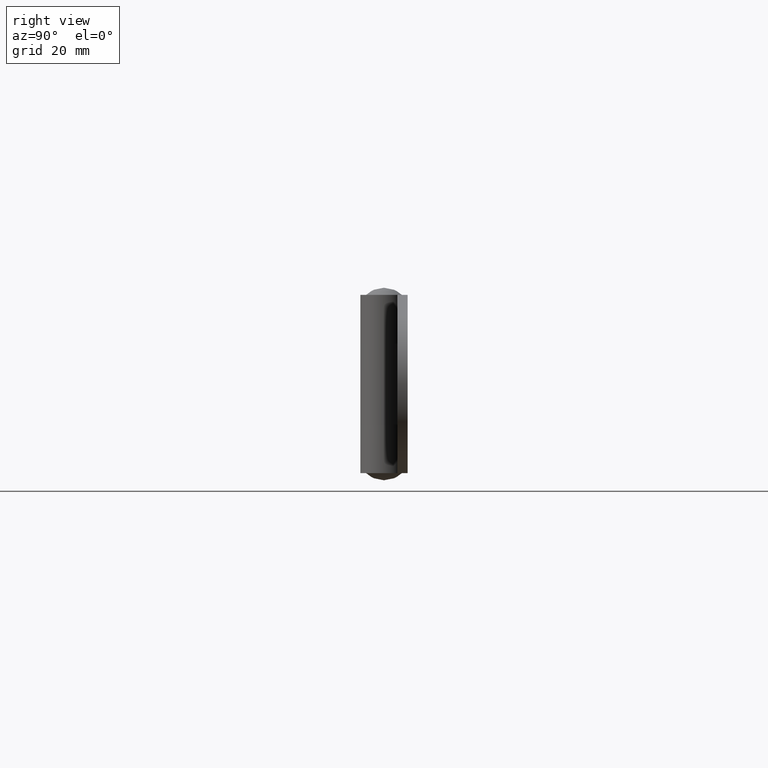
[diagram: clean part render]
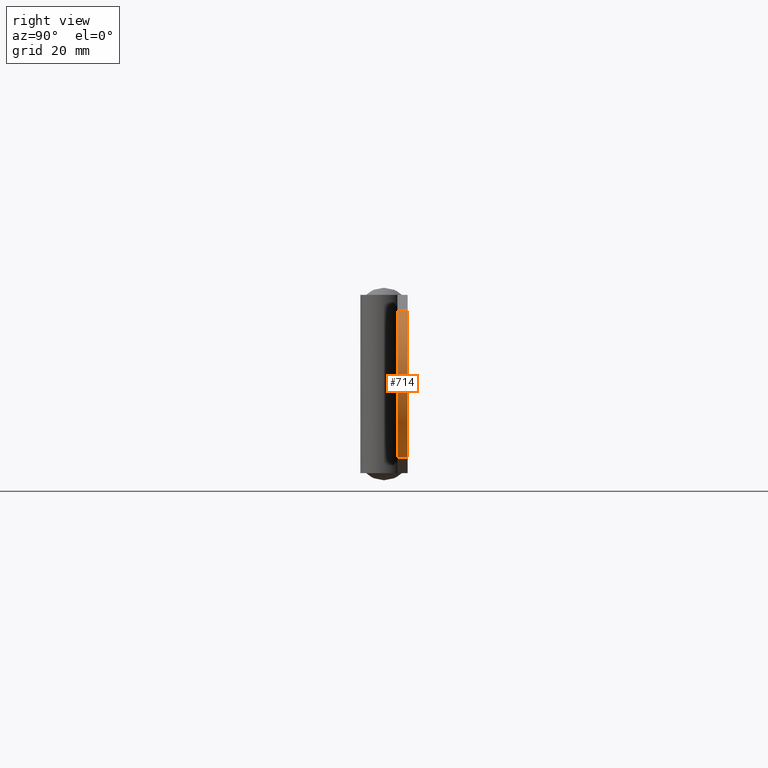
[diagram: same view with one face highlighted and labeled with its STEP entity id]
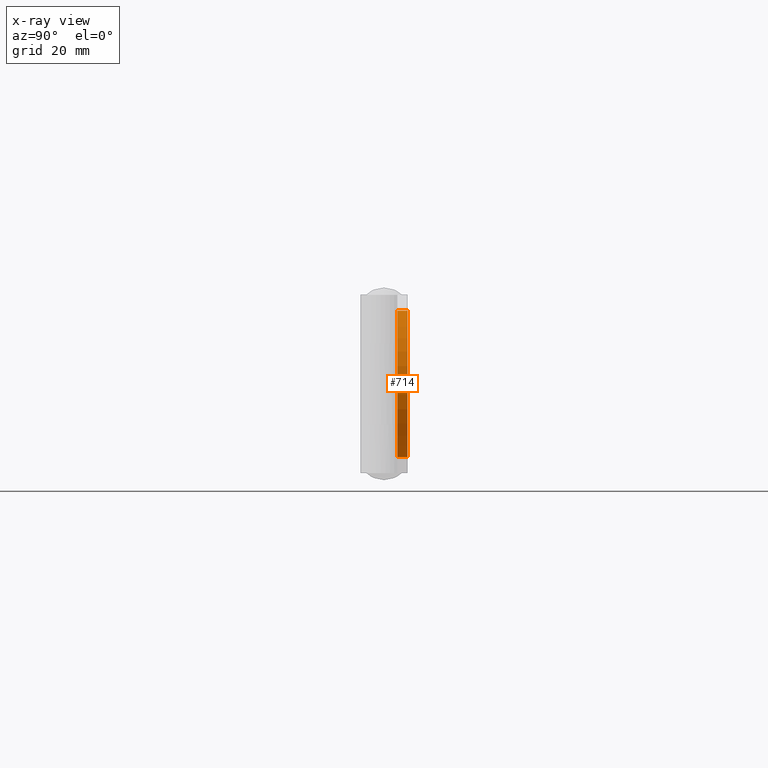
[diagram: x-ray of the same camera — body ghosted, the highlighted face saturated]
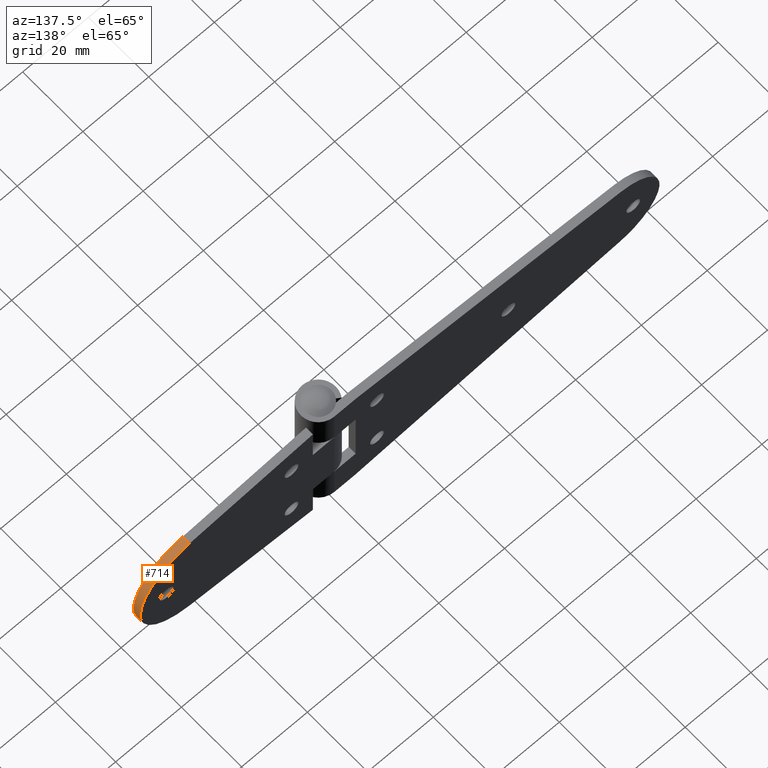
[diagram: same view with one face highlighted and labeled with its STEP entity id]
A machine part, right view. The second image highlights one B-rep face of the part: STEP entity #714.
The next image is the same camera in x-ray: the body ghosted, the highlighted face saturated — about 0% of this face is hidden behind the body in this view.
A second angle (auxiliary view) of the same face is appended — the face is thin or edge-on in the first view.
In plain terms, the highlighted face is a freeform B-spline surface patch.
Its self-contained STEP definition (entity closure, byte-faithful):
#597=CARTESIAN_POINT('',(44.062942999999997,5.299998000000000,3.574187999999905));
#598=VERTEX_POINT('',#597);
#604=CARTESIAN_POINT('',(44.062942999999997,2.999995000000145,3.574187999999905));
#605=VERTEX_POINT('',#604);
#606=CARTESIAN_POINT('',(44.062942999999997,2.999995000000145,3.574187999999905));
#607=CARTESIAN_POINT('',(44.062942999999997,5.299998000000000,3.574187999999905));
#608=QUASI_UNIFORM_CURVE('',1,(#606,#607),.UNSPECIFIED.,.F.,.U.);
#609=EDGE_CURVE('',#605,#598,#608,.T.);
#631=CARTESIAN_POINT('',(44.082909003849402,5.299998000000000,36.423897195414149));
#632=VERTEX_POINT('',#631);
#647=CARTESIAN_POINT('',(44.082909003849402,2.999995000000145,36.423897195414149));
#648=VERTEX_POINT('',#647);
#654=CARTESIAN_POINT('',(44.082909003849402,2.999995000000145,36.423897195414149));
#655=CARTESIAN_POINT('',(44.082909003849402,5.299998000000000,36.423897195414149));
#656=QUASI_UNIFORM_CURVE('',1,(#654,#655),.UNSPECIFIED.,.F.,.U.);
#657=EDGE_CURVE('',#648,#632,#656,.T.);
#662=CARTESIAN_POINT('',(43.919542820002569,2.942494925000148,3.561177104726170));
#663=CARTESIAN_POINT('',(43.919542820002569,5.358935576874998,3.561177104726170));
#664=CARTESIAN_POINT('',(59.383643250374917,2.942494925000148,4.896549647735013));
#665=CARTESIAN_POINT('',(59.383643250374917,5.358935576874999,4.896549647735013));
#666=CARTESIAN_POINT('',(58.994822192835272,2.942494925000148,20.413328957065840));
#667=CARTESIAN_POINT('',(58.994822192835272,5.358935576874998,20.413328957065840));
#668=CARTESIAN_POINT('',(58.606001135295614,2.942494925000148,35.930108266396680));
#669=CARTESIAN_POINT('',(58.606001135295614,5.358935576874999,35.930108266396680));
#670=CARTESIAN_POINT('',(43.094426789516902,2.942494925000148,36.489289153626501));
#671=CARTESIAN_POINT('',(43.094426789516902,5.358935576874998,36.489289153626501));
#679=(BOUNDED_SURFACE()B_SPLINE_SURFACE(1,2,((#662,#664,#666,#668,#670),(#663,#665,#667,#669,#671)),.UNSPECIFIED.,.F.,.F.,.U.)B_SPLINE_SURFACE_WITH_KNOTS((2,2),(3,2,3),(0.0,2.416440651874851),(0.0,26.164566606101150,52.329133212202287),.UNSPECIFIED.)GEOMETRIC_REPRESENTATION_ITEM()RATIONAL_B_SPLINE_SURFACE(((1.0,0.728370969882400,1.0,0.728370969882400,1.0),(1.0,0.728370969882400,1.0,0.728370969882400,1.0)))REPRESENTATION_ITEM('')SURFACE());
#680=CARTESIAN_POINT('',(44.062942999999997,5.299998000000000,3.574187999999905));
#681=CARTESIAN_POINT('',(58.990882922855064,5.299998000000000,4.994606130919656));
#682=CARTESIAN_POINT('',(58.999997082359641,5.299998000000000,19.989969827318589));
#683=CARTESIAN_POINT('',(59.009111241864183,5.299998000000000,34.985333523717529));
#684=CARTESIAN_POINT('',(44.082909003849402,5.299998000000000,36.423897195414149));
#692=(BOUNDED_CURVE()B_SPLINE_CURVE(2,(#680,#681,#682,#683,#684),.UNSPECIFIED.,.F.,.U.)B_SPLINE_CURVE_WITH_KNOTS((3,2,3),(0.0,0.500000000000000,1.0),.UNSPECIFIED.)CURVE()GEOMETRIC_REPRESENTATION_ITEM()RATIONAL_B_SPLINE_CURVE((1.0,0.740043531936631,1.0,0.740043531936631,1.0))REPRESENTATION_ITEM(''));
#693=EDGE_CURVE('',#598,#632,#692,.T.);
#694=ORIENTED_EDGE('',*,*,#693,.T.);
#695=ORIENTED_EDGE('',*,*,#657,.F.);
#696=CARTESIAN_POINT('',(44.062942999999997,2.999995000000145,3.574187999999905));
#697=CARTESIAN_POINT('',(58.990882922855064,2.999995000000146,4.994606130919656));
#698=CARTESIAN_POINT('',(58.999997082359641,2.999995000000145,19.989969827318589));
#699=CARTESIAN_POINT('',(59.009111241864183,2.999995000000146,34.985333523717529));
#700=CARTESIAN_POINT('',(44.082909003849402,2.999995000000145,36.423897195414149));
#708=(BOUNDED_CURVE()B_SPLINE_CURVE(2,(#696,#697,#698,#699,#700),.UNSPECIFIED.,.F.,.U.)B_SPLINE_CURVE_WITH_KNOTS((3,2,3),(0.0,0.500000000000000,1.0),.UNSPECIFIED.)CURVE()GEOMETRIC_REPRESENTATION_ITEM()RATIONAL_B_SPLINE_CURVE((1.0,0.740043531936631,1.0,0.740043531936631,1.0))REPRESENTATION_ITEM(''));
#709=EDGE_CURVE('',#605,#648,#708,.T.);
#710=ORIENTED_EDGE('',*,*,#709,.F.);
#711=ORIENTED_EDGE('',*,*,#609,.T.);
#712=EDGE_LOOP('',(#694,#695,#710,#711));
#713=FACE_OUTER_BOUND('',#712,.T.);
#714=ADVANCED_FACE('',(#713),#679,.T.);